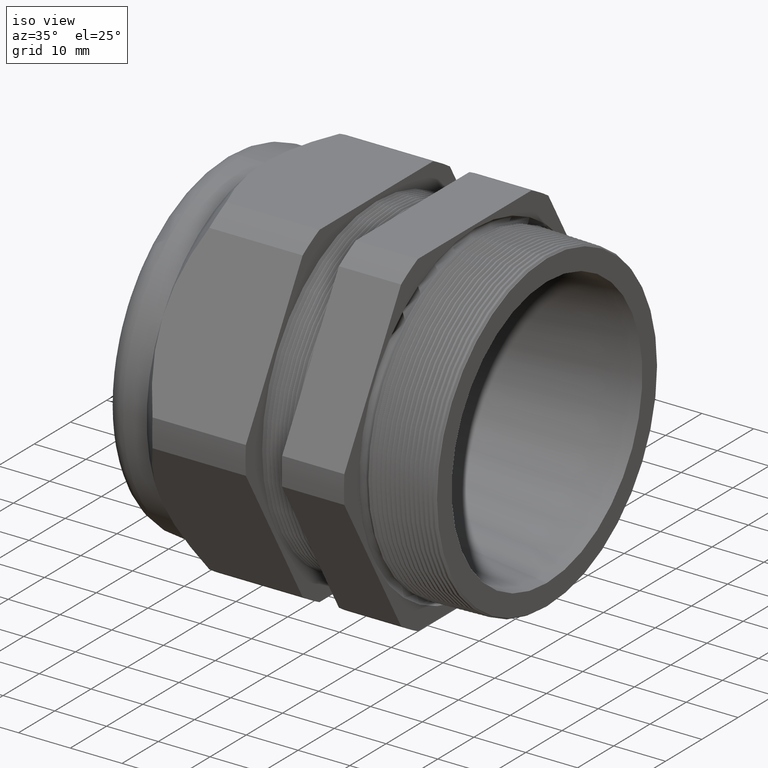
[diagram: clean part render]
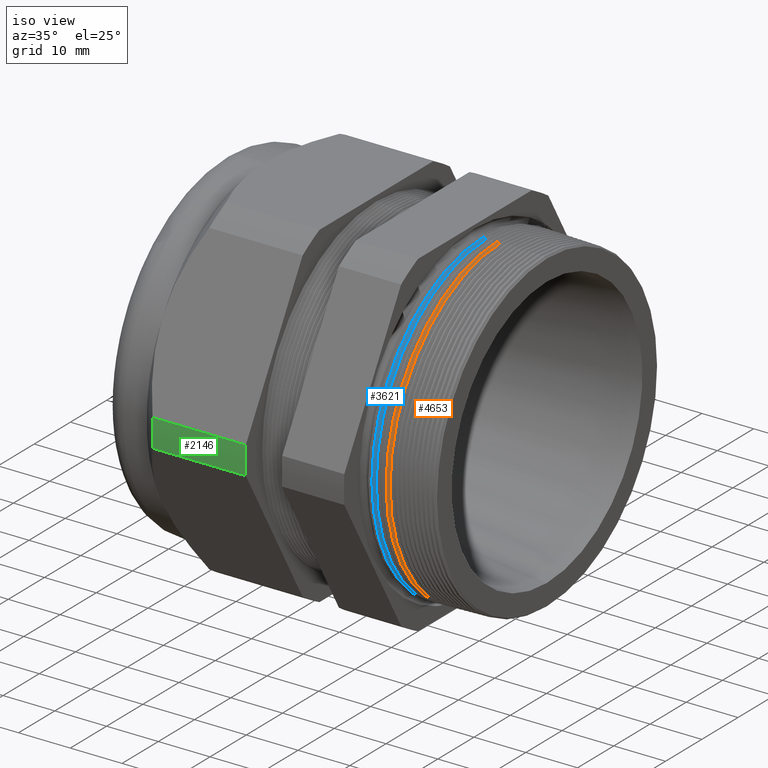
[diagram: same view with three faces highlighted in distinct colors, each labeled with its STEP entity id]
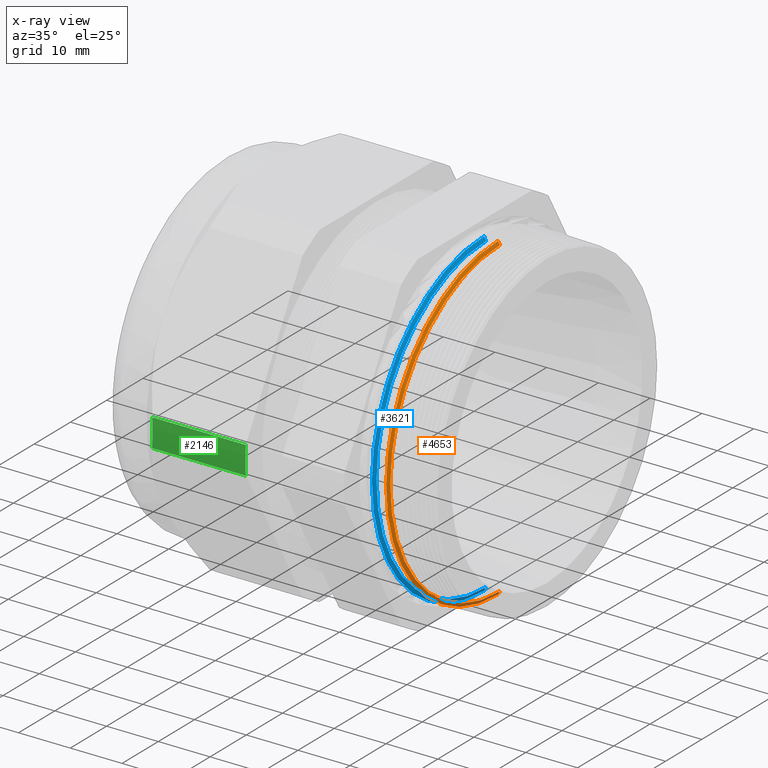
[diagram: x-ray of the same camera — body ghosted, the three highlighted faces saturated]
A machine part, iso view with three faces highlighted in distinct colors.
The next image is the same camera in x-ray (body ghosted, the three faces saturated) — at least one of them is partly hidden behind the body in this view.
Their STEP definitions:

[orange] entity #4653 — the highlighted conical surface has half-angle 61.5 deg.
#55 = CARTESIAN_POINT ( 'NONE',  ( -0.1324760000967738200, 1.488937984899661700E-016, -1.215743279070304900 ) ) ;
#56 = CARTESIAN_POINT ( 'NONE',  ( -0.1324760000967738200, 0.0000000000000000000, 1.215743279070304900 ) ) ;
#327 = DIRECTION ( 'NONE',  ( 0.0000000000000000000, 0.0000000000000000000, 1.000000000000000000 ) ) ;
#328 = DIRECTION ( 'NONE',  ( 1.000000000000000000, 0.0000000000000000000, 0.0000000000000000000 ) ) ;
#329 = CARTESIAN_POINT ( 'NONE',  ( -0.1324760000967738200, 0.0000000000000000000, 0.0000000000000000000 ) ) ;
#330 = AXIS2_PLACEMENT_3D ( 'NONE', #329, #328, #327 ) ;
#335 = CIRCLE ( 'NONE', #330, 1.215743279070304900 ) ;
#1548 = DIRECTION ( 'NONE',  ( -0.4771587602596173400, 0.0000000000000000000, 0.8788171126619606100 ) ) ;
#1549 = VECTOR ( 'NONE', #1548, 39.37007874015748900 ) ;
#1550 = CARTESIAN_POINT ( 'NONE',  ( -0.1349999999999999500, 0.0000000000000000000, 1.220391908608417600 ) ) ;
#1555 = LINE ( 'NONE', #1550, #1549 ) ;
#1727 = CARTESIAN_POINT ( 'NONE',  ( -0.1184707356790753000, 1.473061546559352300E-016, -1.189948790814587800 ) ) ;
#1728 = CARTESIAN_POINT ( 'NONE',  ( -0.1184707356790753000, 0.0000000000000000000, 1.189948790814587800 ) ) ;
#2057 = EDGE_CURVE ( 'NONE', #4460, #2476, #5249, .T. ) ;
#2475 = VERTEX_POINT ( 'NONE', #56 ) ;
#2476 = VERTEX_POINT ( 'NONE', #55 ) ;
#2609 = DIRECTION ( 'NONE',  ( 0.0000000000000000000, 0.0000000000000000000, -1.000000000000000000 ) ) ;
#2610 = DIRECTION ( 'NONE',  ( 1.000000000000000000, 0.0000000000000000000, 0.0000000000000000000 ) ) ;
#2611 = CARTESIAN_POINT ( 'NONE',  ( -0.1184707356790753000, 0.0000000000000000000, 0.0000000000000000000 ) ) ;
#2612 = AXIS2_PLACEMENT_3D ( 'NONE', #2611, #2610, #2609 ) ;
#2613 = CIRCLE ( 'NONE', #2612, 1.189948790814587800 ) ;
#2652 = DIRECTION ( 'NONE',  ( 0.0000000000000000000, 0.0000000000000000000, 1.000000000000000000 ) ) ;
#2653 = DIRECTION ( 'NONE',  ( -1.000000000000000000, 0.0000000000000000000, 0.0000000000000000000 ) ) ;
#2654 = AXIS2_PLACEMENT_3D ( 'NONE', #2657, #2653, #2652 ) ;
#2655 = CONICAL_SURFACE ( 'NONE', #2654, 1.220391908608417600, 1.073377489976502500 ) ;
#2657 = CARTESIAN_POINT ( 'NONE',  ( -0.1349999999999999500, 0.0000000000000000000, 0.0000000000000000000 ) ) ;
#2663 = FACE_OUTER_BOUND ( 'NONE', #4642, .T. ) ;
#3717 = EDGE_CURVE ( 'NONE', #2475, #2476, #335, .T. ) ;
#4353 = EDGE_CURVE ( 'NONE', #4458, #2475, #1555, .T. ) ;
#4458 = VERTEX_POINT ( 'NONE', #1728 ) ;
#4460 = VERTEX_POINT ( 'NONE', #1727 ) ;
#4632 = ORIENTED_EDGE ( 'NONE', *, *, #3717, .T. ) ;
#4634 = ORIENTED_EDGE ( 'NONE', *, *, #4353, .T. ) ;
#4640 = EDGE_CURVE ( 'NONE', #4458, #4460, #2613, .T. ) ;
#4642 = EDGE_LOOP ( 'NONE', ( #4647, #4646, #4634, #4632 ) ) ;
#4646 = ORIENTED_EDGE ( 'NONE', *, *, #4640, .F. ) ;
#4647 = ORIENTED_EDGE ( 'NONE', *, *, #2057, .F. ) ;
#4653 = ADVANCED_FACE ( 'NONE', ( #2663 ), #2655, .T. ) ;
#5246 = DIRECTION ( 'NONE',  ( -0.4771587602596173400, 1.076240564057388800E-016, -0.8788171126619606100 ) ) ;
#5247 = VECTOR ( 'NONE', #5246, 39.37007874015748900 ) ;
#5248 = CARTESIAN_POINT ( 'NONE',  ( -0.1349999999999999500, 1.494549044582627900E-016, -1.220391908608417600 ) ) ;
#5249 = LINE ( 'NONE', #5248, #5247 ) ;

[blue] entity #3621 — the highlighted conical surface has half-angle 61.5 deg.
#128 = DIRECTION ( 'NONE',  ( 0.0000000000000000000, 0.0000000000000000000, -1.000000000000000000 ) ) ;
#129 = DIRECTION ( 'NONE',  ( 1.000000000000000000, 0.0000000000000000000, 0.0000000000000000000 ) ) ;
#130 = CARTESIAN_POINT ( 'NONE',  ( -0.2234707356790753000, 0.0000000000000000000, 0.0000000000000000000 ) ) ;
#131 = AXIS2_PLACEMENT_3D ( 'NONE', #130, #129, #128 ) ;
#132 = CIRCLE ( 'NONE', #131, 1.189948790814587800 ) ;
#229 = DIRECTION ( 'NONE',  ( 0.0000000000000000000, 0.0000000000000000000, 1.000000000000000000 ) ) ;
#230 = DIRECTION ( 'NONE',  ( -1.000000000000000000, 0.0000000000000000000, 0.0000000000000000000 ) ) ;
#231 = AXIS2_PLACEMENT_3D ( 'NONE', #239, #230, #229 ) ;
#233 = CONICAL_SURFACE ( 'NONE', #231, 1.220391908608417600, 1.073377489976502500 ) ;
#234 = FACE_OUTER_BOUND ( 'NONE', #3622, .T. ) ;
#239 = CARTESIAN_POINT ( 'NONE',  ( -0.2399999999999999600, 0.0000000000000000000, 0.0000000000000000000 ) ) ;
#435 = DIRECTION ( 'NONE',  ( 0.0000000000000000000, 0.0000000000000000000, 1.000000000000000000 ) ) ;
#436 = DIRECTION ( 'NONE',  ( 1.000000000000000000, 0.0000000000000000000, 0.0000000000000000000 ) ) ;
#437 = AXIS2_PLACEMENT_3D ( 'NONE', #443, #436, #435 ) ;
#438 = CIRCLE ( 'NONE', #437, 1.218532456793172600 ) ;
#443 = CARTESIAN_POINT ( 'NONE',  ( -0.2389904000387096100, 0.0000000000000000000, 0.0000000000000000000 ) ) ;
#844 = CARTESIAN_POINT ( 'NONE',  ( -0.2234707356790753000, 0.0000000000000000000, 1.189948790814587800 ) ) ;
#845 = CARTESIAN_POINT ( 'NONE',  ( -0.2234707356790753000, 1.474769425344633800E-016, -1.189948790814587800 ) ) ;
#910 = CARTESIAN_POINT ( 'NONE',  ( -0.2389904000387096100, 1.492302870617555300E-016, -1.218532456793172800 ) ) ;
#949 = DIRECTION ( 'NONE',  ( -0.4771587602596173400, 1.076240564057388800E-016, -0.8788171126619606100 ) ) ;
#950 = VECTOR ( 'NONE', #949, 39.37007874015748900 ) ;
#951 = CARTESIAN_POINT ( 'NONE',  ( -0.2399999999999999600, 1.494549044582627900E-016, -1.220391908608417600 ) ) ;
#957 = LINE ( 'NONE', #951, #950 ) ;
#1049 = DIRECTION ( 'NONE',  ( -0.4771587602596173400, 0.0000000000000000000, 0.8788171126619606100 ) ) ;
#1050 = VECTOR ( 'NONE', #1049, 39.37007874015748900 ) ;
#1051 = CARTESIAN_POINT ( 'NONE',  ( -0.2399999999999999600, 0.0000000000000000000, 1.220391908608417600 ) ) ;
#1052 = LINE ( 'NONE', #1051, #1050 ) ;
#1080 = CARTESIAN_POINT ( 'NONE',  ( -0.2389904000387096100, 0.0000000000000000000, 1.218532456793172600 ) ) ;
#3569 = EDGE_CURVE ( 'NONE', #4002, #4001, #132, .T. ) ;
#3572 = ORIENTED_EDGE ( 'NONE', *, *, #4079, .T. ) ;
#3573 = ORIENTED_EDGE ( 'NONE', *, *, #3760, .T. ) ;
#3578 = ORIENTED_EDGE ( 'NONE', *, *, #4033, .F. ) ;
#3580 = ORIENTED_EDGE ( 'NONE', *, *, #3569, .F. ) ;
#3621 = ADVANCED_FACE ( 'NONE', ( #234 ), #233, .T. ) ;
#3622 = EDGE_LOOP ( 'NONE', ( #3578, #3580, #3572, #3573 ) ) ;
#3760 = EDGE_CURVE ( 'NONE', #4099, #4025, #438, .T. ) ;
#4001 = VERTEX_POINT ( 'NONE', #845 ) ;
#4002 = VERTEX_POINT ( 'NONE', #844 ) ;
#4025 = VERTEX_POINT ( 'NONE', #910 ) ;
#4033 = EDGE_CURVE ( 'NONE', #4001, #4025, #957, .T. ) ;
#4079 = EDGE_CURVE ( 'NONE', #4002, #4099, #1052, .T. ) ;
#4099 = VERTEX_POINT ( 'NONE', #1080 ) ;

[green] entity #2146 — the highlighted cylindrical surface (partial cylindrical patch) has radius 36.0883 mm, axis along (-1, 0, 0).
#2031 = EDGE_LOOP ( 'NONE', ( #2150, #2152, #2135, #2133 ) ) ;
#2047 = VERTEX_POINT ( 'NONE', #5262 ) ;
#2049 = EDGE_CURVE ( 'NONE', #2051, #2047, #5261, .T. ) ;
#2051 = VERTEX_POINT ( 'NONE', #5257 ) ;
#2130 = EDGE_CURVE ( 'NONE', #2051, #2132, #5390, .T. ) ;
#2132 = VERTEX_POINT ( 'NONE', #5381 ) ;
#2133 = ORIENTED_EDGE ( 'NONE', *, *, #2130, .F. ) ;
#2135 = ORIENTED_EDGE ( 'NONE', *, *, #2137, .F. ) ;
#2136 = VERTEX_POINT ( 'NONE', #5380 ) ;
#2137 = EDGE_CURVE ( 'NONE', #2132, #2136, #5379, .T. ) ;
#2146 = ADVANCED_FACE ( 'NONE', ( #5416 ), #5415, .T. ) ;
#2150 = ORIENTED_EDGE ( 'NONE', *, *, #2049, .T. ) ;
#2151 = EDGE_CURVE ( 'NONE', #2047, #2136, #5407, .T. ) ;
#2152 = ORIENTED_EDGE ( 'NONE', *, *, #2151, .T. ) ;
#5257 = CARTESIAN_POINT ( 'NONE',  ( -1.058802799999999400, -1.416843767287496500, 0.1059546086707598600 ) ) ;
#5258 = DIRECTION ( 'NONE',  ( -1.000000000000000000, 0.0000000000000000000, 0.0000000000000000000 ) ) ;
#5259 = VECTOR ( 'NONE', #5258, 39.37007874015748100 ) ;
#5260 = CARTESIAN_POINT ( 'NONE',  ( 0.2400000000000001900, -1.416843767287496500, 0.1059546086707598600 ) ) ;
#5261 = LINE ( 'NONE', #5260, #5259 ) ;
#5262 = CARTESIAN_POINT ( 'NONE',  ( -1.768492000000000200, -1.416843767287496500, 0.1059546086707598600 ) ) ;
#5376 = DIRECTION ( 'NONE',  ( -1.000000000000000000, 0.0000000000000000000, 0.0000000000000000000 ) ) ;
#5377 = VECTOR ( 'NONE', #5376, 39.37007874015748100 ) ;
#5378 = CARTESIAN_POINT ( 'NONE',  ( 0.2400000000000001900, -1.416843767287496500, -0.1059546086707604700 ) ) ;
#5379 = LINE ( 'NONE', #5378, #5377 ) ;
#5380 = CARTESIAN_POINT ( 'NONE',  ( -1.768492000000000000, -1.416843767287496500, -0.1059546086707604400 ) ) ;
#5381 = CARTESIAN_POINT ( 'NONE',  ( -1.058802799999999400, -1.416843767287496500, -0.1059546086707604700 ) ) ;
#5382 = DIRECTION ( 'NONE',  ( 0.0000000000000000000, 0.0000000000000000000, -1.000000000000000000 ) ) ;
#5383 = DIRECTION ( 'NONE',  ( 1.000000000000000000, 0.0000000000000000000, 0.0000000000000000000 ) ) ;
#5384 = CARTESIAN_POINT ( 'NONE',  ( -1.058802799999999400, 0.0000000000000000000, 0.0000000000000000000 ) ) ;
#5385 = AXIS2_PLACEMENT_3D ( 'NONE', #5384, #5383, #5382 ) ;
#5390 = CIRCLE ( 'NONE', #5385, 1.420799999999999800 ) ;
#5403 = DIRECTION ( 'NONE',  ( 0.0000000000000000000, 0.0000000000000000000, -1.000000000000000000 ) ) ;
#5404 = DIRECTION ( 'NONE',  ( 1.000000000000000000, 0.0000000000000000000, 0.0000000000000000000 ) ) ;
#5405 = CARTESIAN_POINT ( 'NONE',  ( -1.768492000000000200, 0.0000000000000000000, 0.0000000000000000000 ) ) ;
#5406 = AXIS2_PLACEMENT_3D ( 'NONE', #5405, #5404, #5403 ) ;
#5407 = CIRCLE ( 'NONE', #5406, 1.420799999999999800 ) ;
#5411 = DIRECTION ( 'NONE',  ( 0.0000000000000000000, 0.0000000000000000000, 1.000000000000000000 ) ) ;
#5412 = DIRECTION ( 'NONE',  ( -1.000000000000000000, 0.0000000000000000000, 0.0000000000000000000 ) ) ;
#5413 = AXIS2_PLACEMENT_3D ( 'NONE', #5421, #5412, #5411 ) ;
#5415 = CYLINDRICAL_SURFACE ( 'NONE', #5413, 1.420799999999999800 ) ;
#5416 = FACE_OUTER_BOUND ( 'NONE', #2031, .T. ) ;
#5421 = CARTESIAN_POINT ( 'NONE',  ( 0.2400000000000001900, 0.0000000000000000000, 0.0000000000000000000 ) ) ;